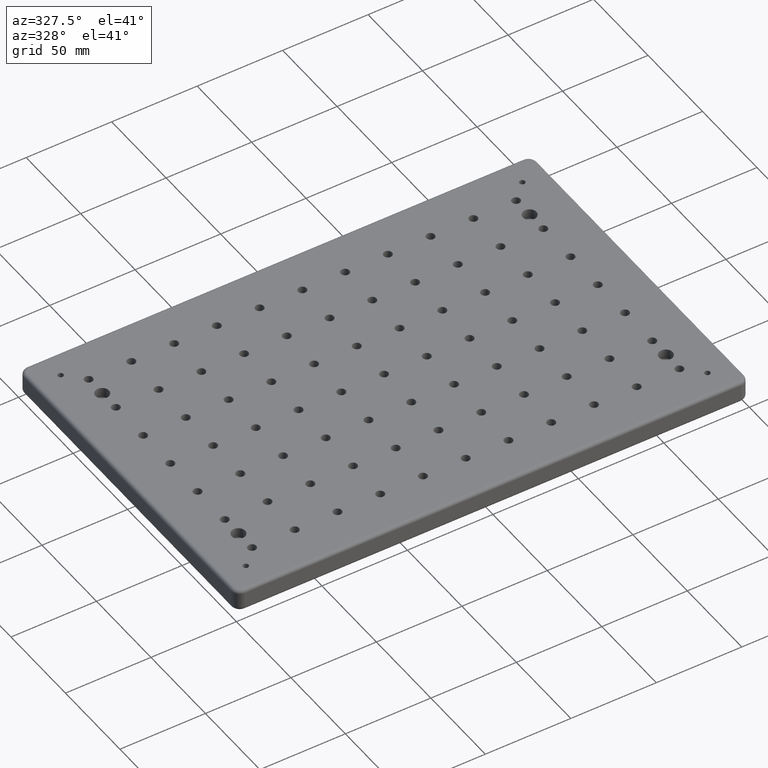
[diagram: clean part render]
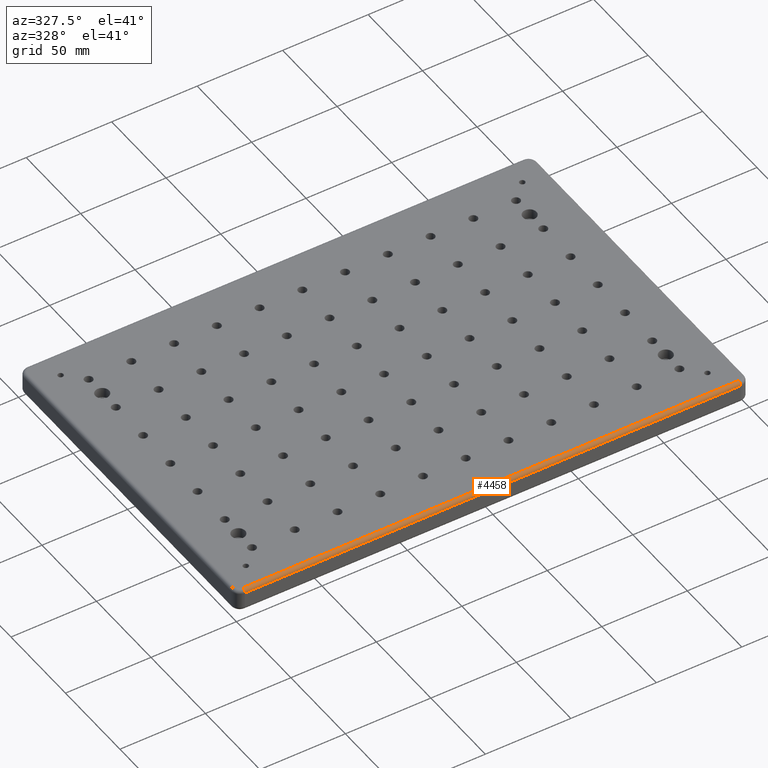
[diagram: same view with one face highlighted and labeled with its STEP entity id]
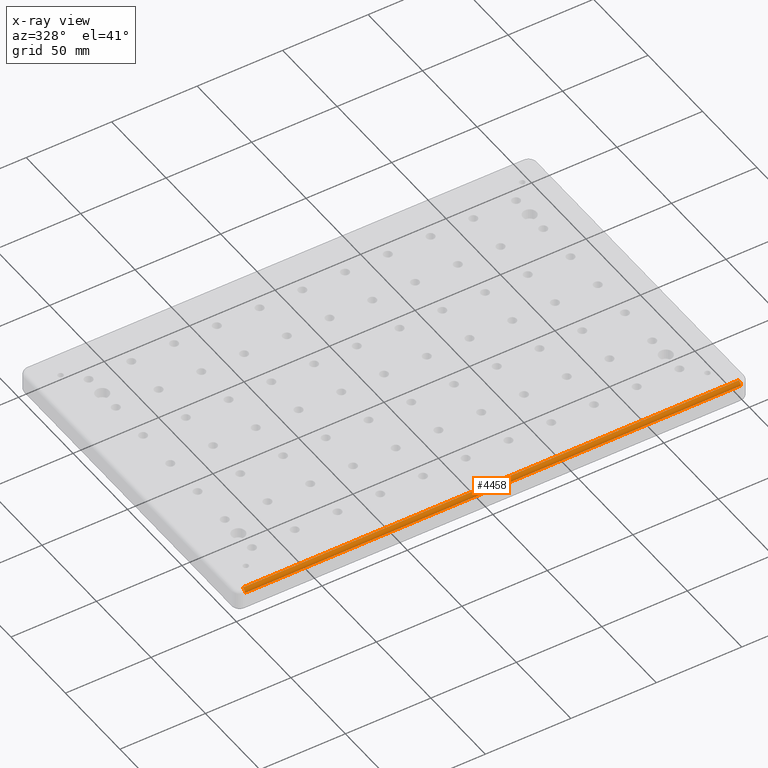
[diagram: x-ray of the same camera — body ghosted, the highlighted face saturated]
A machine part, auxiliary view. The second image highlights one B-rep face of the part: STEP entity #4458.
The next image is the same camera in x-ray: the body ghosted, the highlighted face saturated — about 0% of this face is hidden behind the body in this view.
In plain terms, the highlighted cylindrical surface (edge-blend (fillet) strip) has radius 2 mm, axis along (-1, 0, 0).
Its self-contained STEP definition (entity closure, byte-faithful):
#310 = DIRECTION ( 'NONE',  ( 0.0000000000000000000, -1.000000000000000000, 0.0000000000000000000 ) ) ;
#460 = CIRCLE ( 'NONE', #1967, 2.000000000000001800 ) ;
#593 = EDGE_CURVE ( 'NONE', #4356, #5009, #3979, .T. ) ;
#706 = VERTEX_POINT ( 'NONE', #4596 ) ;
#753 = CARTESIAN_POINT ( 'NONE',  ( -145.0000000000001100, -98.00000000000000000, -2.000000000000000000 ) ) ;
#943 = ORIENTED_EDGE ( 'NONE', *, *, #5550, .F. ) ;
#1349 = CYLINDRICAL_SURFACE ( 'NONE', #1732, 2.000000000000001800 ) ;
#1451 = DIRECTION ( 'NONE',  ( -1.000000000000000000, 1.387778780781444600E-014, 0.0000000000000000000 ) ) ;
#1608 = CARTESIAN_POINT ( 'NONE',  ( -145.0000000000000900, -100.0000000000000000, -2.000000000000000000 ) ) ;
#1625 = DIRECTION ( 'NONE',  ( -1.000000000000000000, 0.0000000000000000000, 0.0000000000000000000 ) ) ;
#1678 = CARTESIAN_POINT ( 'NONE',  ( -145.0000000000000900, -98.00000000000000000, 0.0000000000000000000 ) ) ;
#1732 = AXIS2_PLACEMENT_3D ( 'NONE', #753, #3604, #310 ) ;
#1884 = FACE_OUTER_BOUND ( 'NONE', #5748, .T. ) ;
#1967 = AXIS2_PLACEMENT_3D ( 'NONE', #3712, #1451, #7198 ) ;
#2308 = ORIENTED_EDGE ( 'NONE', *, *, #4538, .T. ) ;
#2598 = VERTEX_POINT ( 'NONE', #6727 ) ;
#3071 = VECTOR ( 'NONE', #5604, 1000.000000000000000 ) ;
#3356 = DIRECTION ( 'NONE',  ( 0.0000000000000000000, 0.0000000000000000000, 1.000000000000000000 ) ) ;
#3562 = CARTESIAN_POINT ( 'NONE',  ( -145.0000000000000900, -100.0000000000000000, -2.000000000000003600 ) ) ;
#3604 = DIRECTION ( 'NONE',  ( -1.000000000000000000, 1.435633221498046800E-016, 0.0000000000000000000 ) ) ;
#3712 = CARTESIAN_POINT ( 'NONE',  ( 145.0000000000001100, -98.00000000000000000, -1.999999999999999100 ) ) ;
#3979 = CIRCLE ( 'NONE', #4383, 2.000000000000000000 ) ;
#4356 = VERTEX_POINT ( 'NONE', #3562 ) ;
#4383 = AXIS2_PLACEMENT_3D ( 'NONE', #6798, #1625, #3356 ) ;
#4458 = ADVANCED_FACE ( 'NONE', ( #1884 ), #1349, .T. ) ;
#4538 = EDGE_CURVE ( 'NONE', #2598, #706, #460, .T. ) ;
#4596 = CARTESIAN_POINT ( 'NONE',  ( 145.0000000000001100, -98.00000000000004300, 0.0000000000000000000 ) ) ;
#5009 = VERTEX_POINT ( 'NONE', #1678 ) ;
#5550 = EDGE_CURVE ( 'NONE', #5009, #706, #7144, .T. ) ;
#5604 = DIRECTION ( 'NONE',  ( -1.000000000000000000, 1.435633221498046800E-016, -0.0000000000000000000 ) ) ;
#5622 = VECTOR ( 'NONE', #5883, 1000.000000000000000 ) ;
#5748 = EDGE_LOOP ( 'NONE', ( #2308, #943, #6080, #5870 ) ) ;
#5808 = CARTESIAN_POINT ( 'NONE',  ( 145.0000000000000600, -98.00000000000004300, 0.0000000000000000000 ) ) ;
#5870 = ORIENTED_EDGE ( 'NONE', *, *, #5944, .F. ) ;
#5883 = DIRECTION ( 'NONE',  ( 1.000000000000000000, -1.435633221498046800E-016, 0.0000000000000000000 ) ) ;
#5944 = EDGE_CURVE ( 'NONE', #2598, #4356, #6314, .T. ) ;
#6080 = ORIENTED_EDGE ( 'NONE', *, *, #593, .F. ) ;
#6314 = LINE ( 'NONE', #1608, #3071 ) ;
#6727 = CARTESIAN_POINT ( 'NONE',  ( 145.0000000000000900, -100.0000000000000400, -2.000000000000003600 ) ) ;
#6798 = CARTESIAN_POINT ( 'NONE',  ( -145.0000000000000900, -98.00000000000000000, -2.000000000000000000 ) ) ;
#7144 = LINE ( 'NONE', #5808, #5622 ) ;
#7198 = DIRECTION ( 'NONE',  ( -1.387778780781444400E-014, -1.000000000000000000, 0.0000000000000000000 ) ) ;